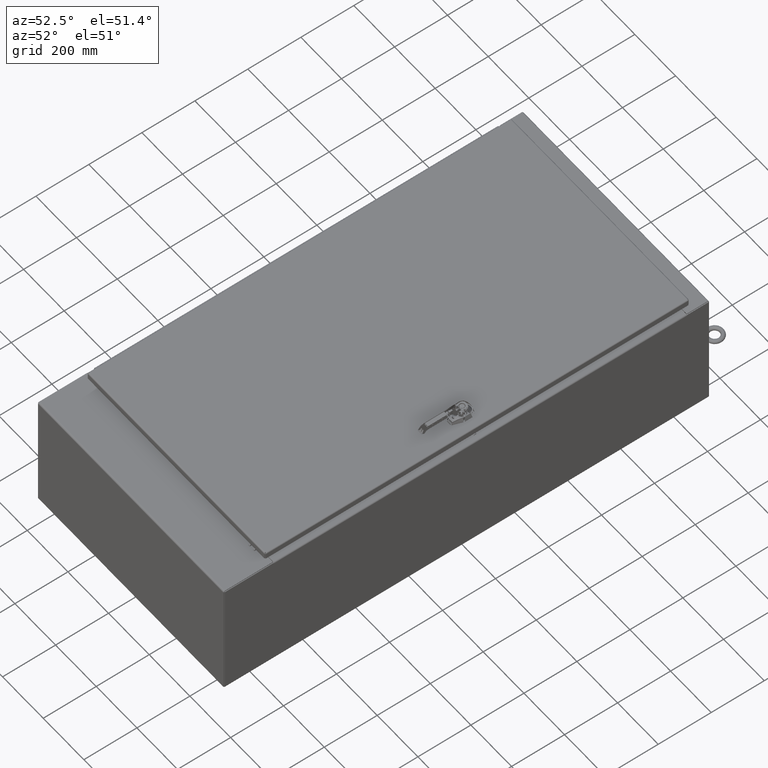
[diagram: clean part render]
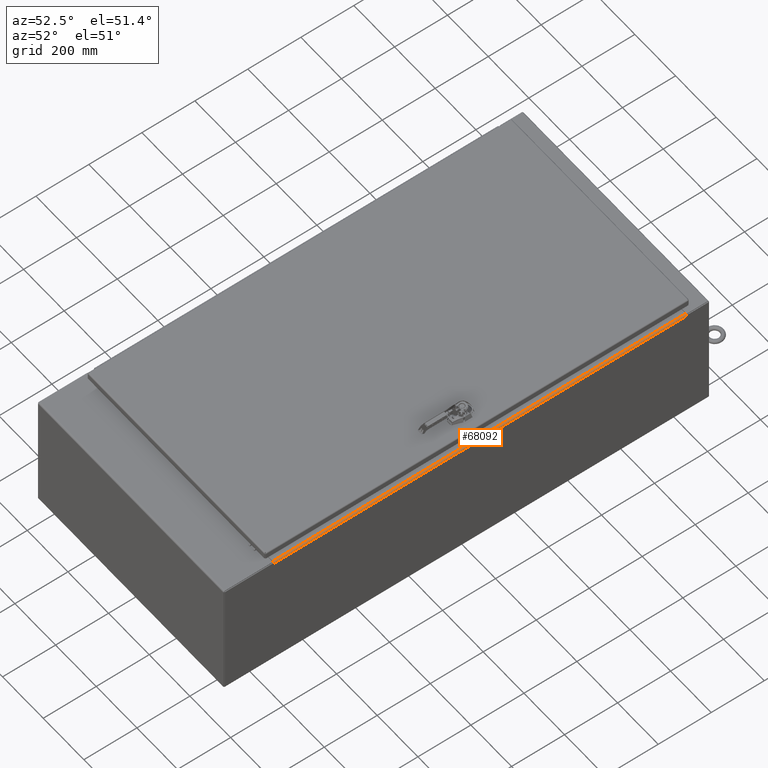
[diagram: same view with one face highlighted and labeled with its STEP entity id]
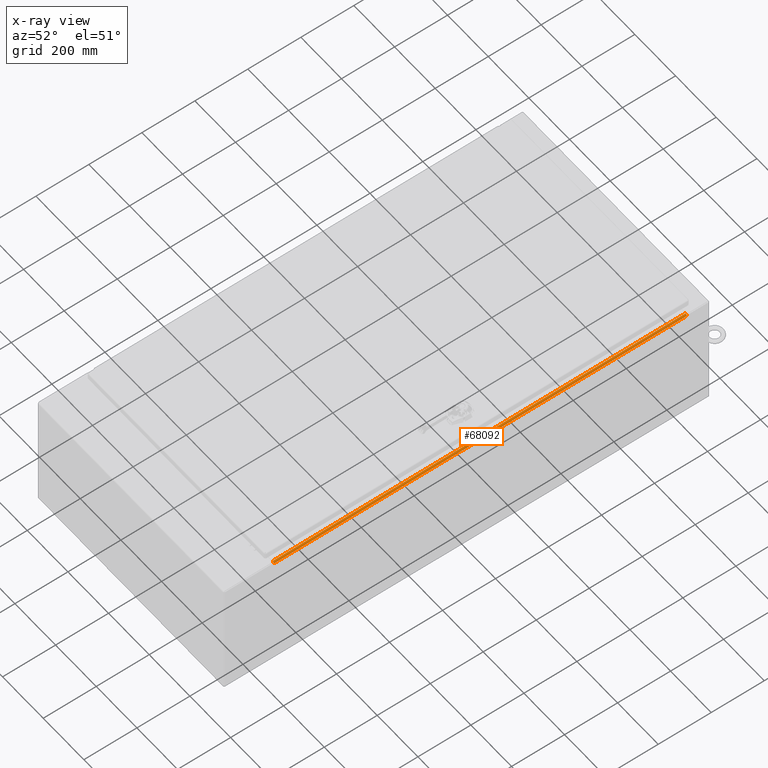
[diagram: x-ray of the same camera — body ghosted, the highlighted face saturated]
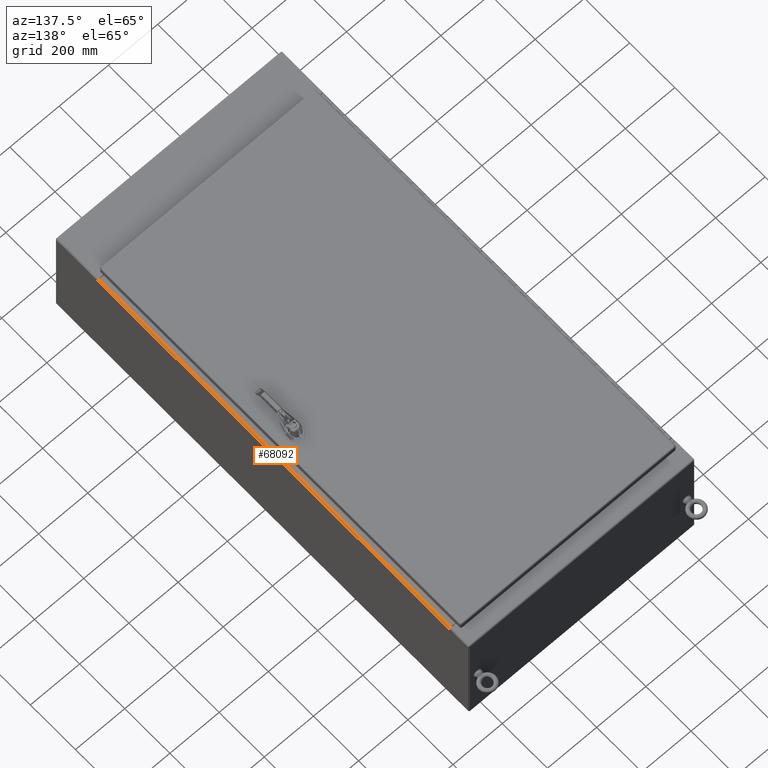
[diagram: same view with one face highlighted and labeled with its STEP entity id]
A machine part, auxiliary view. The second image highlights one B-rep face of the part: STEP entity #68092.
The next image is the same camera in x-ray: the body ghosted, the highlighted face saturated — about 0% of this face is hidden behind the body in this view.
A second angle (auxiliary view) of the same face is appended — the face is thin or edge-on in the first view.
In plain terms, the highlighted cylindrical surface (edge-blend (fillet) strip) has radius 6.2135 mm, axis along (-0, -1, -0).
Its self-contained STEP definition (entity closure, byte-faithful):
#10361=FACE_OUTER_BOUND('',#13309,.T.);
#13309=EDGE_LOOP('',(#50201,#50202,#50203,#50204));
#16394=CIRCLE('',#71886,0.244624999999988);
#16395=CIRCLE('',#71887,0.244624999999997);
#20016=LINE('',#96205,#25134);
#20017=LINE('',#96209,#25135);
#25134=VECTOR('',#78337,0.393700787401575);
#25135=VECTOR('',#78340,0.393700787401575);
#30235=VERTEX_POINT('',#96186);
#30240=VERTEX_POINT('',#96204);
#30241=VERTEX_POINT('',#96206);
#30242=VERTEX_POINT('',#96208);
#39525=EDGE_CURVE('',#30235,#30240,#20016,.T.);
#39526=EDGE_CURVE('',#30241,#30235,#16394,.T.);
#39527=EDGE_CURVE('',#30242,#30241,#20017,.T.);
#39528=EDGE_CURVE('',#30240,#30242,#16395,.T.);
#50201=ORIENTED_EDGE('',*,*,#39525,.F.);
#50202=ORIENTED_EDGE('',*,*,#39526,.F.);
#50203=ORIENTED_EDGE('',*,*,#39527,.F.);
#50204=ORIENTED_EDGE('',*,*,#39528,.F.);
#64649=CYLINDRICAL_SURFACE('',#71885,0.244624999999993);
#68092=ADVANCED_FACE('',(#10361),#64649,.T.);
#71885=AXIS2_PLACEMENT_3D('',#96203,#78335,#78336);
#71886=AXIS2_PLACEMENT_3D('',#96207,#78338,#78339);
#71887=AXIS2_PLACEMENT_3D('',#96210,#78341,#78342);
#78335=DIRECTION('center_axis',(-3.1991458090363E-16,-1.,-3.88977897508538E-17));
#78336=DIRECTION('ref_axis',(1.,-3.19914580903629E-16,-5.41759846898647E-15));
#78337=DIRECTION('',(3.19914580903631E-16,1.,1.12832688376229E-16));
#78338=DIRECTION('center_axis',(-3.1991458090363E-16,-1.,-3.88977897508538E-17));
#78339=DIRECTION('ref_axis',(1.,0.,2.28710258192118E-14));
#78340=DIRECTION('',(-3.15810780969979E-16,-1.,0.));
#78341=DIRECTION('center_axis',(3.1991458090363E-16,1.,3.88977897508538E-17));
#78342=DIRECTION('ref_axis',(2.2871025819211E-14,0.,1.));
#96186=CARTESIAN_POINT('',(17.8178750000001,-28.6875,18.125));
#96203=CARTESIAN_POINT('Origin',(17.8178750000001,2.,17.880375));
#96204=CARTESIAN_POINT('',(17.8178750000001,32.6875,18.125));
#96205=CARTESIAN_POINT('',(17.8178750000001,2.,18.125));
#96206=CARTESIAN_POINT('',(18.0625000000001,-28.6875,17.880375));
#96207=CARTESIAN_POINT('Origin',(17.8178750000001,-28.6875,17.880375));
#96208=CARTESIAN_POINT('',(18.0625000000001,32.6875,17.880375));
#96209=CARTESIAN_POINT('',(18.0625000000001,16.34375,17.880375));
#96210=CARTESIAN_POINT('Origin',(17.8178750000001,32.6875,17.880375));